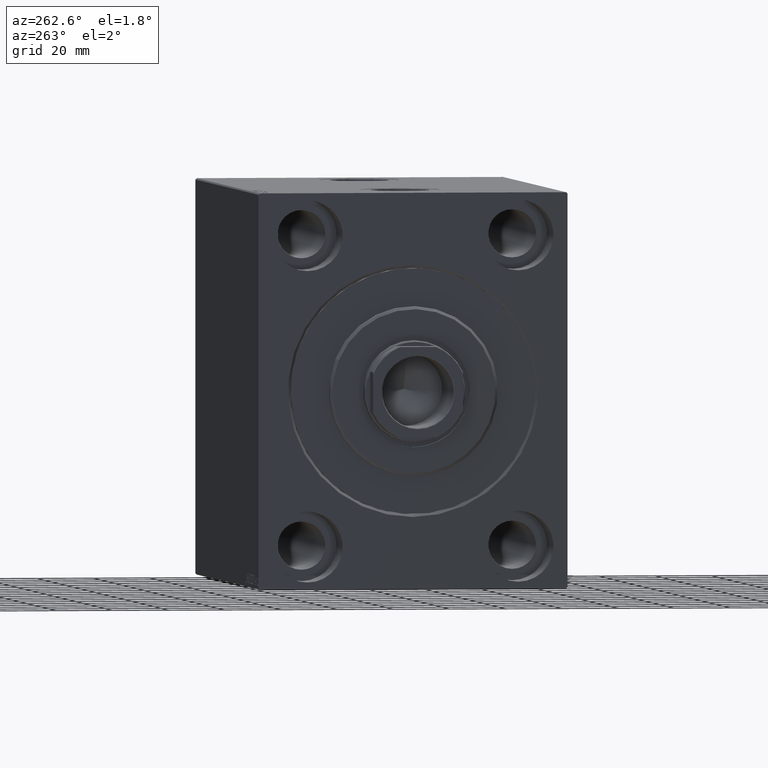
[diagram: clean part render]
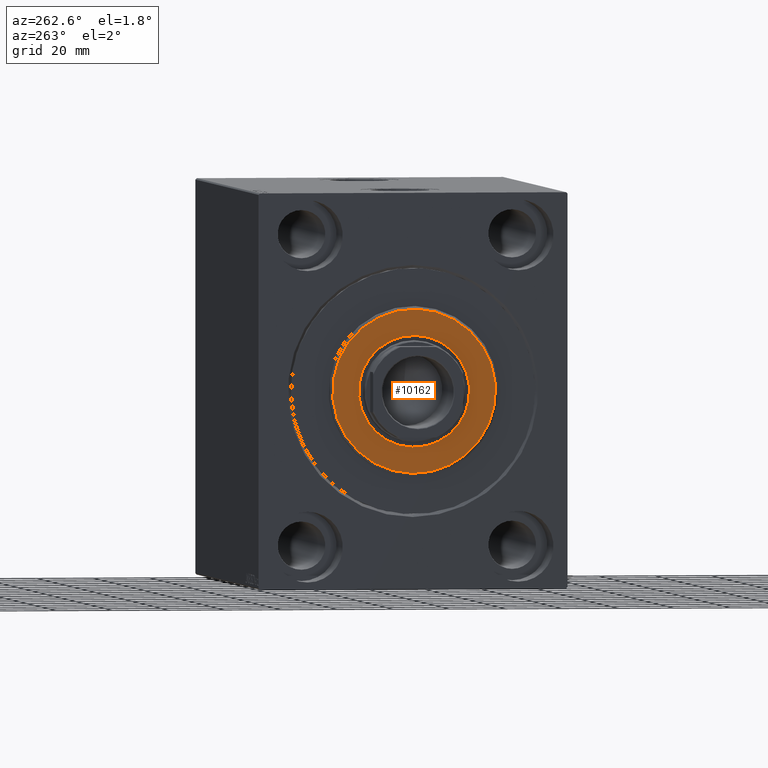
[diagram: same view with one face highlighted and labeled with its STEP entity id]
A machine part, auxiliary view. The second image highlights one B-rep face of the part: STEP entity #10162.
In plain terms, the highlighted planar face has unit normal (-1, 0, 0).
Its self-contained STEP definition (entity closure, byte-faithful):
#1644 = CIRCLE ( 'NONE', #18027, 28.99999999999999289 ) ;
#2672 = DIRECTION ( 'NONE',  ( 0.000000000000000000, 0.000000000000000000, -1.000000000000000000 ) ) ;
#2884 = ORIENTED_EDGE ( 'NONE', *, *, #41275, .T. ) ;
#3677 = EDGE_LOOP ( 'NONE', ( #14444, #33973 ) ) ;
#6043 = CIRCLE ( 'NONE', #33798, 28.99999999999999289 ) ;
#8906 = DIRECTION ( 'NONE',  ( 1.000000000000000000, -0.000000000000000000, 0.000000000000000000 ) ) ;
#10162 = ADVANCED_FACE ( 'NONE', ( #15384, #11817 ), #12257, .T. ) ;
#11503 = EDGE_LOOP ( 'NONE', ( #2884, #27728 ) ) ;
#11817 = FACE_BOUND ( 'NONE', #11503, .T. ) ;
#12257 = PLANE ( 'NONE',  #27492 ) ;
#13069 = VERTEX_POINT ( 'NONE', #27696 ) ;
#13341 = VERTEX_POINT ( 'NONE', #21378 ) ;
#14444 = ORIENTED_EDGE ( 'NONE', *, *, #39347, .T. ) ;
#15384 = FACE_OUTER_BOUND ( 'NONE', #3677, .T. ) ;
#18027 = AXIS2_PLACEMENT_3D ( 'NONE', #22429, #42285, #39581 ) ;
#18349 = CARTESIAN_POINT ( 'NONE',  ( 3.000000000000000000, 0.000000000000000000, 19.75000000000000000 ) ) ;
#18881 = AXIS2_PLACEMENT_3D ( 'NONE', #39925, #19216, #19434 ) ;
#19216 = DIRECTION ( 'NONE',  ( -1.000000000000000000, 0.000000000000000000, -0.000000000000000000 ) ) ;
#19434 = DIRECTION ( 'NONE',  ( 0.000000000000000000, 0.000000000000000000, -1.000000000000000000 ) ) ;
#19579 = DIRECTION ( 'NONE',  ( 0.000000000000000000, 0.000000000000000000, -1.000000000000000000 ) ) ;
#19929 = VERTEX_POINT ( 'NONE', #39842 ) ;
#21378 = CARTESIAN_POINT ( 'NONE',  ( 3.000000000000000000, 3.612708057484691604E-15, -28.99999999999999289 ) ) ;
#22429 = CARTESIAN_POINT ( 'NONE',  ( 3.000000000000000000, 0.000000000000000000, 0.000000000000000000 ) ) ;
#22502 = DIRECTION ( 'NONE',  ( 0.000000000000000000, 0.000000000000000000, -1.000000000000000000 ) ) ;
#26060 = DIRECTION ( 'NONE',  ( -1.000000000000000000, 0.000000000000000000, -0.000000000000000000 ) ) ;
#27492 = AXIS2_PLACEMENT_3D ( 'NONE', #39428, #8906, #22502 ) ;
#27696 = CARTESIAN_POINT ( 'NONE',  ( 3.000000000000000000, 2.418677428316022331E-15, -19.75000000000000000 ) ) ;
#27698 = EDGE_CURVE ( 'NONE', #13069, #40420, #43473, .T. ) ;
#27728 = ORIENTED_EDGE ( 'NONE', *, *, #27698, .T. ) ;
#30100 = DIRECTION ( 'NONE',  ( 1.000000000000000000, -0.000000000000000000, 0.000000000000000000 ) ) ;
#33130 = CIRCLE ( 'NONE', #18881, 19.75000000000000000 ) ;
#33397 = CARTESIAN_POINT ( 'NONE',  ( 3.000000000000000000, 0.000000000000000000, 0.000000000000000000 ) ) ;
#33798 = AXIS2_PLACEMENT_3D ( 'NONE', #36119, #30100, #2672 ) ;
#33973 = ORIENTED_EDGE ( 'NONE', *, *, #35798, .T. ) ;
#35798 = EDGE_CURVE ( 'NONE', #13341, #19929, #1644, .T. ) ;
#36119 = CARTESIAN_POINT ( 'NONE',  ( 3.000000000000000000, 0.000000000000000000, 0.000000000000000000 ) ) ;
#38466 = AXIS2_PLACEMENT_3D ( 'NONE', #33397, #26060, #19579 ) ;
#39347 = EDGE_CURVE ( 'NONE', #19929, #13341, #6043, .T. ) ;
#39428 = CARTESIAN_POINT ( 'NONE',  ( 3.000000000000000000, 0.000000000000000000, 0.000000000000000000 ) ) ;
#39581 = DIRECTION ( 'NONE',  ( 0.000000000000000000, 0.000000000000000000, -1.000000000000000000 ) ) ;
#39842 = CARTESIAN_POINT ( 'NONE',  ( 3.000000000000000000, 0.000000000000000000, 28.99999999999999289 ) ) ;
#39925 = CARTESIAN_POINT ( 'NONE',  ( 3.000000000000000000, 0.000000000000000000, 0.000000000000000000 ) ) ;
#40420 = VERTEX_POINT ( 'NONE', #18349 ) ;
#41275 = EDGE_CURVE ( 'NONE', #40420, #13069, #33130, .T. ) ;
#42285 = DIRECTION ( 'NONE',  ( 1.000000000000000000, -0.000000000000000000, 0.000000000000000000 ) ) ;
#43473 = CIRCLE ( 'NONE', #38466, 19.75000000000000000 ) ;